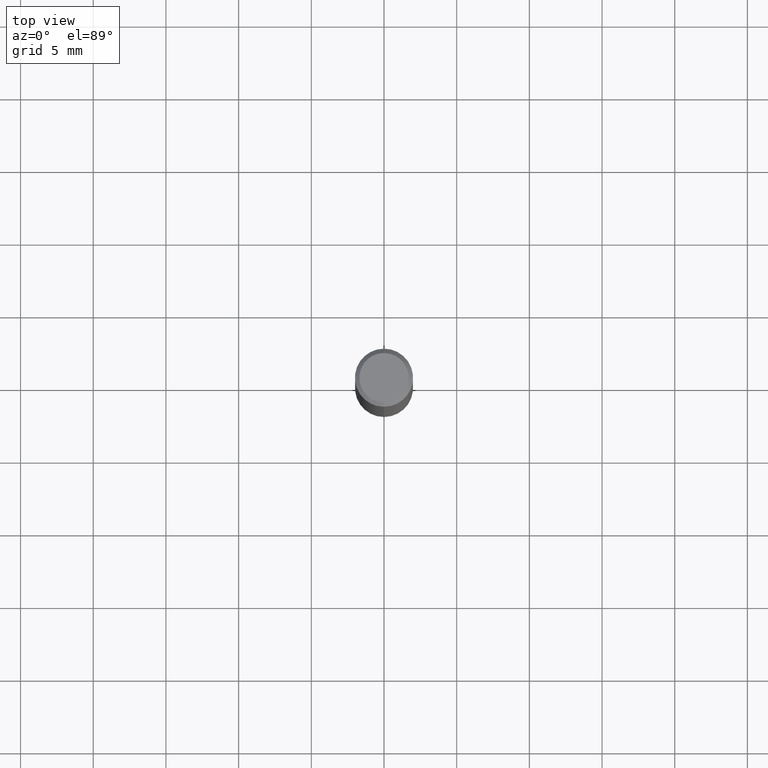
[diagram: clean part render]
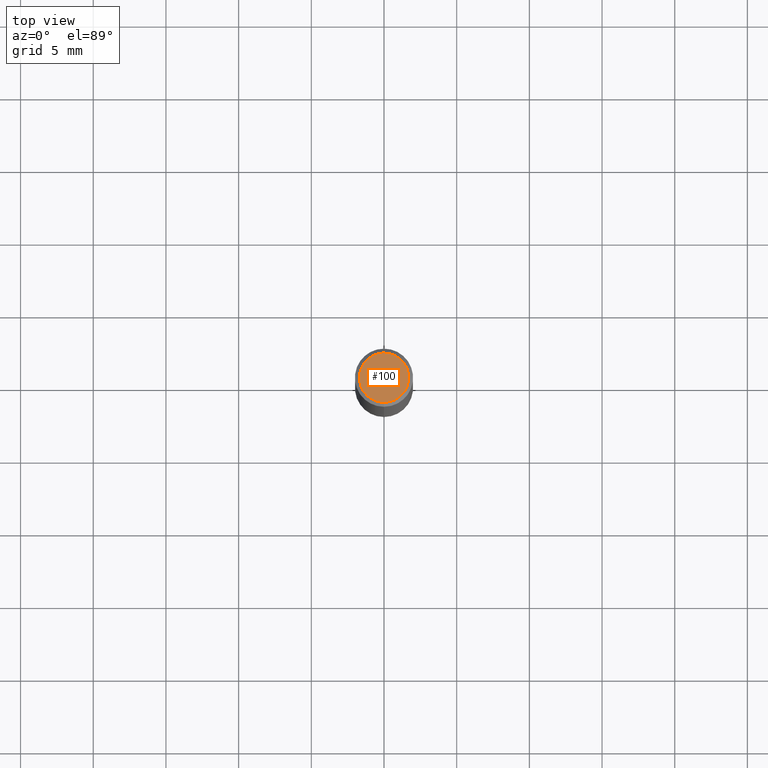
[diagram: same view with one face highlighted and labeled with its STEP entity id]
A machine part, top view. The second image highlights one B-rep face of the part: STEP entity #100.
In plain terms, the highlighted planar face has unit normal (-0, 0, 1).
Its self-contained STEP definition (entity closure, byte-faithful):
#100=ADVANCED_FACE('',(#253),#254,.T.);
#122=EDGE_CURVE('',#196,#126,#280,.T.);
#126=VERTEX_POINT('',#285);
#134=EDGE_CURVE('',#126,#196,#294,.T.);
#196=VERTEX_POINT('',#364);
#253=FACE_OUTER_BOUND('',#416,.T.);
#254=PLANE('',#417);
#280=CIRCLE('',#448,1.7);
#285=CARTESIAN_POINT('',(0.0,1.7,0.0));
#294=CIRCLE('',#463,1.7);
#364=CARTESIAN_POINT('',(2.08183080149804E-016,-1.7,0.0));
#416=EDGE_LOOP('',(#607,#608));
#417=AXIS2_PLACEMENT_3D('',#609,#610,#611);
#448=AXIS2_PLACEMENT_3D('',#651,#652,#653);
#463=AXIS2_PLACEMENT_3D('',#666,#667,#668);
#607=ORIENTED_EDGE('',*,*,#134,.F.);
#608=ORIENTED_EDGE('',*,*,#122,.F.);
#609=CARTESIAN_POINT('',(0.0,0.85,0.0));
#610=DIRECTION('',(-0.0,0.0,1.0));
#611=DIRECTION('',(0.0,-1.0,0.0));
#651=CARTESIAN_POINT('',(0.0,0.0,0.0));
#652=DIRECTION('',(0.0,0.0,-1.0));
#653=DIRECTION('',(0.0,1.0,0.0));
#666=CARTESIAN_POINT('',(0.0,0.0,0.0));
#667=DIRECTION('',(0.0,0.0,-1.0));
#668=DIRECTION('',(0.0,1.0,0.0));